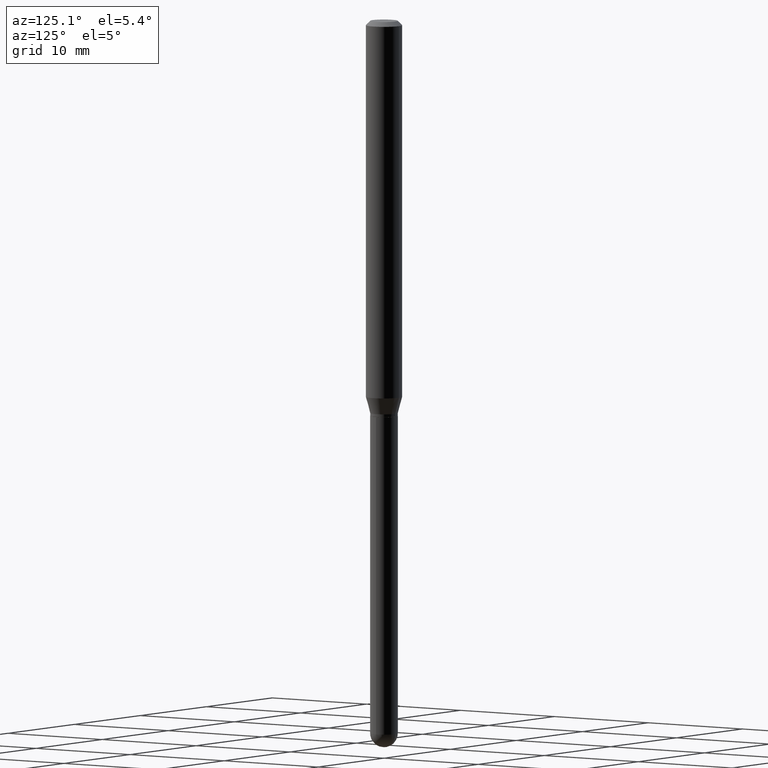
[diagram: clean part render]
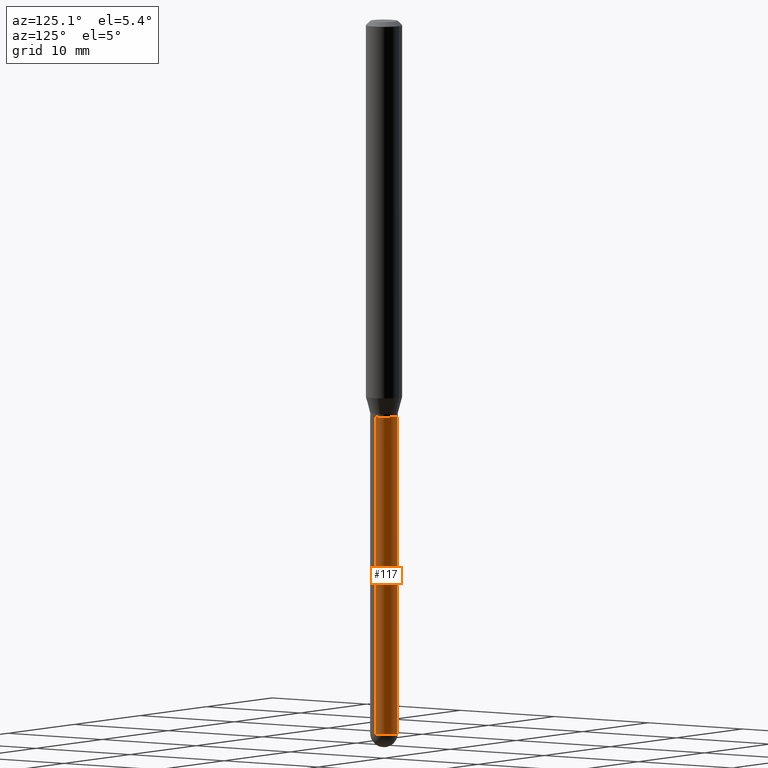
[diagram: same view with one face highlighted and labeled with its STEP entity id]
A machine part, auxiliary view. The second image highlights one B-rep face of the part: STEP entity #117.
In plain terms, the highlighted cylindrical surface (edge-blend (fillet) strip) has radius 1.2065 mm, axis along (-0, 0, 1).
Its self-contained STEP definition (entity closure, byte-faithful):
#3 = VERTEX_POINT ( 'NONE', #150 ) ;
#5 = DIRECTION ( 'NONE',  ( 1.000000000000000000, -6.982962677686280910E-15, 0.000000000000000000 ) ) ;
#20 = EDGE_LOOP ( 'NONE', ( #183, #377, #339, #374, #167 ) ) ;
#23 = EDGE_CURVE ( 'NONE', #139, #3, #210, .T. ) ;
#40 = EDGE_CURVE ( 'NONE', #450, #351, #45, .T. ) ;
#45 = CIRCLE ( 'NONE', #456, 0.04750000000000000749 ) ;
#62 = DIRECTION ( 'NONE',  ( 1.000000000000000000, -6.982962677686280910E-15, 0.000000000000000000 ) ) ;
#63 = CARTESIAN_POINT ( 'NONE',  ( 3.316907271901575630E-16, 0.04749999999999143102, -2.452500000000000568 ) ) ;
#66 = CIRCLE ( 'NONE', #342, 0.04750000000000000749 ) ;
#69 = CARTESIAN_POINT ( 'NONE',  ( 0.000000000000000000, 0.000000000000000000, 0.000000000000000000 ) ) ;
#70 = EDGE_CURVE ( 'NONE', #450, #139, #380, .T. ) ;
#78 = DIRECTION ( 'NONE',  ( -2.445468806185136597E-29, 3.491481338843145583E-15, 1.000000000000000000 ) ) ;
#83 = CARTESIAN_POINT ( 'NONE',  ( 3.325837576411786624E-29, -4.748414620826679034E-15, -1.360000000000000320 ) ) ;
#84 = CARTESIAN_POINT ( 'NONE',  ( 0.04749999999999999362, -5.080105348016776545E-15, -1.360000000000000320 ) ) ;
#95 = DIRECTION ( 'NONE',  ( -2.445468806185136877E-29, 3.491481338843145188E-15, 1.000000000000000000 ) ) ;
#100 = VECTOR ( 'NONE', #95, 39.37007874015748143 ) ;
#116 = DIRECTION ( 'NONE',  ( -2.445468806185136597E-29, 3.491481338843145583E-15, 1.000000000000000000 ) ) ;
#117 = ADVANCED_FACE ( 'NONE', ( #483 ), #222, .T. ) ;
#139 = VERTEX_POINT ( 'NONE', #84 ) ;
#149 = DIRECTION ( 'NONE',  ( -2.445468806185136877E-29, 3.491481338843145188E-15, 1.000000000000000000 ) ) ;
#150 = CARTESIAN_POINT ( 'NONE',  ( -0.04749999999999999362, -6.318128502683699525E-15, -1.360000000000000320 ) ) ;
#154 = AXIS2_PLACEMENT_3D ( 'NONE', #69, #116, #400 ) ;
#167 = ORIENTED_EDGE ( 'NONE', *, *, #40, .T. ) ;
#175 = AXIS2_PLACEMENT_3D ( 'NONE', #83, #473, #470 ) ;
#182 = VECTOR ( 'NONE', #149, 39.37007874015748143 ) ;
#183 = ORIENTED_EDGE ( 'NONE', *, *, #198, .T. ) ;
#198 = EDGE_CURVE ( 'NONE', #351, #487, #66, .T. ) ;
#210 = CIRCLE ( 'NONE', #175, 0.04749999999999999362 ) ;
#222 = CYLINDRICAL_SURFACE ( 'NONE', #154, 0.04750000000000000749 ) ;
#242 = CARTESIAN_POINT ( 'NONE',  ( -0.04750000000000000749, -6.318128502683699525E-15, -2.452500000000000124 ) ) ;
#245 = DIRECTION ( 'NONE',  ( -2.445468806185136597E-29, 3.491481338843145583E-15, 1.000000000000000000 ) ) ;
#287 = CARTESIAN_POINT ( 'NONE',  ( 0.04750000000000000749, -6.987327029359844530E-15, -2.452500000000000124 ) ) ;
#339 = ORIENTED_EDGE ( 'NONE', *, *, #23, .F. ) ;
#342 = AXIS2_PLACEMENT_3D ( 'NONE', #434, #78, #62 ) ;
#349 = CARTESIAN_POINT ( 'NONE',  ( 0.04750000000000000749, -3.316907271900977082E-16, 2.316183968503069432E-30 ) ) ;
#350 = LINE ( 'NONE', #499, #182 ) ;
#351 = VERTEX_POINT ( 'NONE', #63 ) ;
#374 = ORIENTED_EDGE ( 'NONE', *, *, #70, .F. ) ;
#377 = ORIENTED_EDGE ( 'NONE', *, *, #387, .T. ) ;
#380 = LINE ( 'NONE', #349, #100 ) ;
#387 = EDGE_CURVE ( 'NONE', #487, #3, #350, .T. ) ;
#400 = DIRECTION ( 'NONE',  ( 1.000000000000000000, -6.982962677686266711E-15, 4.876176775795934672E-29 ) ) ;
#432 = CARTESIAN_POINT ( 'NONE',  ( 5.997512247169047773E-29, -8.562857983512815004E-15, -2.452500000000000124 ) ) ;
#434 = CARTESIAN_POINT ( 'NONE',  ( 5.997512247169047773E-29, -8.562857983512815004E-15, -2.452500000000000124 ) ) ;
#450 = VERTEX_POINT ( 'NONE', #287 ) ;
#456 = AXIS2_PLACEMENT_3D ( 'NONE', #432, #245, #5 ) ;
#470 = DIRECTION ( 'NONE',  ( 1.000000000000000000, -6.982962677686261977E-15, 0.000000000000000000 ) ) ;
#473 = DIRECTION ( 'NONE',  ( -2.445468806185136597E-29, 3.491481338843145583E-15, 1.000000000000000000 ) ) ;
#483 = FACE_OUTER_BOUND ( 'NONE', #20, .T. ) ;
#487 = VERTEX_POINT ( 'NONE', #242 ) ;
#499 = CARTESIAN_POINT ( 'NONE',  ( -0.04750000000000000749, 3.375077994860476415E-16, -2.336494167871080260E-30 ) ) ;